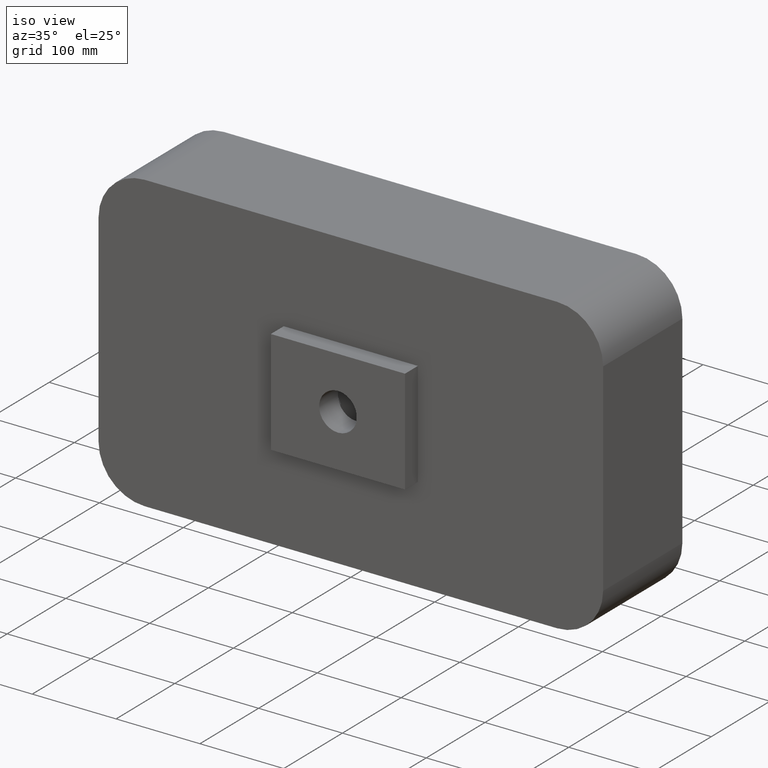
[diagram: clean part render]
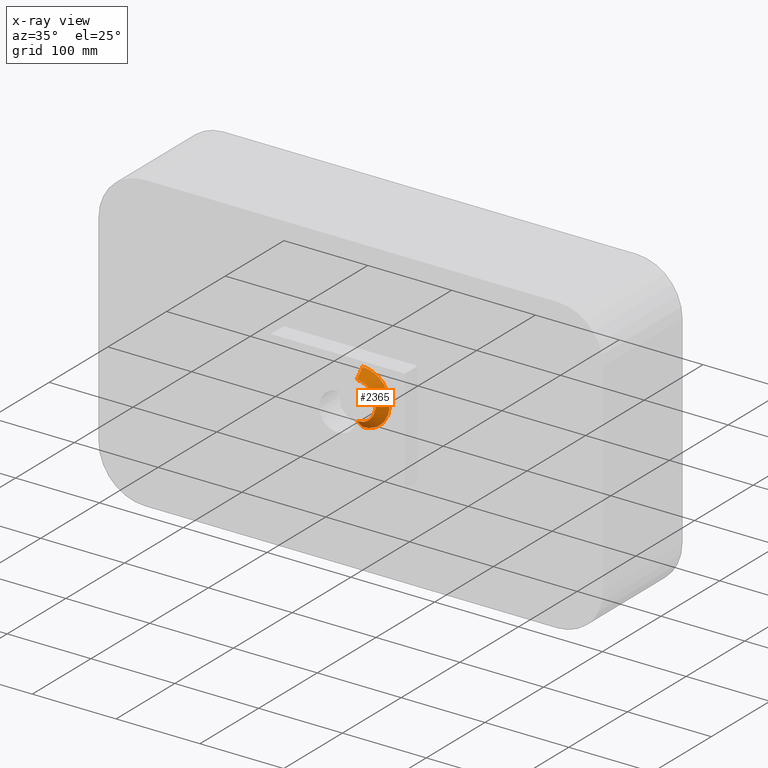
[diagram: x-ray — body ghosted, one internal face saturated and labeled with its STEP entity id]
A machine part, iso view, then the same camera in x-ray: the body is ghosted and one INTERNAL B-rep face — a face not visible from any outside direction — is saturated and labeled: STEP entity #2365.
In plain terms, the highlighted conical surface has half-angle 45 deg.
Its self-contained STEP definition (entity closure, byte-faithful):
#1 = CIRCLE ( 'NONE', #1334, 22.50000000000000400 ) ;
#33 = EDGE_CURVE ( 'NONE', #3898, #3593, #236, .T. ) ;
#80 = DIRECTION ( 'NONE',  ( 0.0000000000000000000, 0.0000000000000000000, 1.000000000000000000 ) ) ;
#115 = VERTEX_POINT ( 'NONE', #2238 ) ;
#118 = EDGE_CURVE ( 'NONE', #3722, #3073, #3879, .T. ) ;
#137 = CARTESIAN_POINT ( 'NONE',  ( 3.980102097228881300E-015, 19.99999999999998900, -32.49999999999986500 ) ) ;
#148 = CARTESIAN_POINT ( 'NONE',  ( 0.0000000000000000000, 19.99999999999999600, 0.0000000000000000000 ) ) ;
#236 = B_SPLINE_CURVE_WITH_KNOTS ( 'NONE', 3,
 ( #2494, #2490, #3352, #2545 ),
 .UNSPECIFIED., .F., .F.,
 ( 4, 4 ),
 ( 2.242781863231506700E-007, 0.005416605650511058800 ),
 .UNSPECIFIED. ) ;
#262 = ORIENTED_EDGE ( 'NONE', *, *, #1605, .F. ) ;
#275 = CARTESIAN_POINT ( 'NONE',  ( 29.65022553647534300, 19.78635688464801100, 12.90208177657897100 ) ) ;
#320 = CARTESIAN_POINT ( 'NONE',  ( 0.0000000000000000000, 19.99999999999998900, 0.0000000000000000000 ) ) ;
#342 = DIRECTION ( 'NONE',  ( 0.0000000000000000000, 0.0000000000000000000, 1.000000000000000000 ) ) ;
#400 = EDGE_CURVE ( 'NONE', #2932, #3073, #3658, .T. ) ;
#474 = DIRECTION ( 'NONE',  ( -0.0000000000000000000, 1.000000000000000000, -0.0000000000000000000 ) ) ;
#512 = CARTESIAN_POINT ( 'NONE',  ( 28.17156820453775600, 19.99999999999999600, 16.20533075555906100 ) ) ;
#535 = VERTEX_POINT ( 'NONE', #3062 ) ;
#549 = ORIENTED_EDGE ( 'NONE', *, *, #1485, .F. ) ;
#645 = CIRCLE ( 'NONE', #1710, 32.49999999999987200 ) ;
#688 = ORIENTED_EDGE ( 'NONE', *, *, #400, .T. ) ;
#951 = CONICAL_SURFACE ( 'NONE', #2060, 32.49999999999986500, 0.7853981633974463900 ) ;
#1004 = FACE_OUTER_BOUND ( 'NONE', #2607, .T. ) ;
#1091 = VERTEX_POINT ( 'NONE', #3864 ) ;
#1143 = CARTESIAN_POINT ( 'NONE',  ( 0.0000000000000000000, 19.99999999999999600, 0.0000000000000000000 ) ) ;
#1182 = DIRECTION ( 'NONE',  ( -0.0000000000000000000, -1.000000000000000000, -0.0000000000000000000 ) ) ;
#1223 = DIRECTION ( 'NONE',  ( 3.552713678800500900E-015, 0.0000000000000000000, 1.000000000000000000 ) ) ;
#1334 = AXIS2_PLACEMENT_3D ( 'NONE', #2575, #1957, #80 ) ;
#1345 = CARTESIAN_POINT ( 'NONE',  ( 2.755455298081545200E-015, 10.00000000000009200, 22.50000000000000400 ) ) ;
#1346 = AXIS2_PLACEMENT_3D ( 'NONE', #148, #2463, #1435 ) ;
#1405 = B_SPLINE_CURVE_WITH_KNOTS ( 'NONE', 3,
 ( #2581, #2620, #2647, #2657 ),
 .UNSPECIFIED., .F., .F.,
 ( 4, 4 ),
 ( 3.177388258759934400E-007, 0.0002728880739989348500 ),
 .UNSPECIFIED. ) ;
#1435 = DIRECTION ( 'NONE',  ( -1.776356839400250500E-015, 0.0000000000000000000, 1.000000000000000000 ) ) ;
#1443 = ORIENTED_EDGE ( 'NONE', *, *, #33, .F. ) ;
#1485 = EDGE_CURVE ( 'NONE', #115, #1091, #2314, .T. ) ;
#1519 = VERTEX_POINT ( 'NONE', #2013 ) ;
#1605 = EDGE_CURVE ( 'NONE', #1091, #1519, #2113, .T. ) ;
#1710 = AXIS2_PLACEMENT_3D ( 'NONE', #1143, #1182, #1223 ) ;
#1837 = DIRECTION ( 'NONE',  ( 8.659560562354915600E-017, 0.7071067811865489100, -0.7071067811865462400 ) ) ;
#1917 = CARTESIAN_POINT ( 'NONE',  ( 0.0000000000000000000, 19.99999999999999600, 32.49999999999987200 ) ) ;
#1957 = DIRECTION ( 'NONE',  ( -0.0000000000000000000, 1.000000000000000000, -0.0000000000000000000 ) ) ;
#2009 = ORIENTED_EDGE ( 'NONE', *, *, #2417, .F. ) ;
#2013 = CARTESIAN_POINT ( 'NONE',  ( 28.17156820453776700, 19.99999999999999600, -16.20533075555906100 ) ) ;
#2052 = VERTEX_POINT ( 'NONE', #3264 ) ;
#2060 = AXIS2_PLACEMENT_3D ( 'NONE', #320, #474, #342 ) ;
#2067 = CARTESIAN_POINT ( 'NONE',  ( 0.0000000000000000000, 19.99999999999998900, 32.49999999999986500 ) ) ;
#2113 = CIRCLE ( 'NONE', #1346, 32.49999999999987200 ) ;
#2238 = CARTESIAN_POINT ( 'NONE',  ( 0.0000000000000000000, 10.00000000000009200, -22.50000000000000400 ) ) ;
#2314 = LINE ( 'NONE', #137, #2333 ) ;
#2333 = VECTOR ( 'NONE', #1837, 1000.000000000000000 ) ;
#2365 = ADVANCED_FACE ( 'NONE', ( #1004 ), #951, .F. ) ;
#2407 = DIRECTION ( 'NONE',  ( -3.552713678800500900E-015, 0.0000000000000000000, 1.000000000000000000 ) ) ;
#2409 = CARTESIAN_POINT ( 'NONE',  ( 0.0000000000000000000, 19.99999999999999600, 0.0000000000000000000 ) ) ;
#2417 = EDGE_CURVE ( 'NONE', #2052, #535, #3414, .T. ) ;
#2428 = DIRECTION ( 'NONE',  ( -0.0000000000000000000, -1.000000000000000000, -0.0000000000000000000 ) ) ;
#2441 = CARTESIAN_POINT ( 'NONE',  ( 30.47169365987559800, 19.99999999999999600, 11.30158774237887300 ) ) ;
#2462 = CARTESIAN_POINT ( 'NONE',  ( 30.47169365987564800, 19.99999999999999600, -11.30158774237872000 ) ) ;
#2463 = DIRECTION ( 'NONE',  ( -0.0000000000000000000, -1.000000000000000000, -0.0000000000000000000 ) ) ;
#2490 = CARTESIAN_POINT ( 'NONE',  ( 28.82635668250554800, 19.72036284496105600, -14.50725323506958200 ) ) ;
#2494 = CARTESIAN_POINT ( 'NONE',  ( 27.99999999999999600, 19.80737455625945700, -16.11727181375411200 ) ) ;
#2536 = CARTESIAN_POINT ( 'NONE',  ( 27.99999999999999600, 19.80737455625945700, -16.11727181375411200 ) ) ;
#2545 = CARTESIAN_POINT ( 'NONE',  ( 30.47169365987564800, 19.99999999999999600, -11.30158774237872000 ) ) ;
#2575 = CARTESIAN_POINT ( 'NONE',  ( 0.0000000000000000000, 10.00000000000009200, 0.0000000000000000000 ) ) ;
#2581 = CARTESIAN_POINT ( 'NONE',  ( 28.00000000000000000, 19.80737455625946100, 16.11727181375411900 ) ) ;
#2607 = EDGE_LOOP ( 'NONE', ( #549, #3759, #688, #3687, #3585, #2009, #3382, #1443, #3515, #262 ) ) ;
#2620 = CARTESIAN_POINT ( 'NONE',  ( 28.05718959763475300, 19.87158281680535800, 16.14662489501725400 ) ) ;
#2622 = EDGE_CURVE ( 'NONE', #3593, #2052, #645, .T. ) ;
#2647 = CARTESIAN_POINT ( 'NONE',  ( 28.11437899798427500, 19.93579129936253100, 16.17597787502194300 ) ) ;
#2657 = CARTESIAN_POINT ( 'NONE',  ( 28.17156820453775600, 19.99999999999999600, 16.20533075555906100 ) ) ;
#2825 = DIRECTION ( 'NONE',  ( 0.0000000000000000000, 0.7071067811865489100, 0.7071067811865462400 ) ) ;
#2932 = VERTEX_POINT ( 'NONE', #1345 ) ;
#2997 = CARTESIAN_POINT ( 'NONE',  ( 28.17156820453776700, 19.99999999999999600, -16.20533075555906100 ) ) ;
#3001 = CARTESIAN_POINT ( 'NONE',  ( 28.11437899798427500, 19.93579129936253500, -16.17597787502193900 ) ) ;
#3009 = B_SPLINE_CURVE_WITH_KNOTS ( 'NONE', 3,
 ( #2997, #3001, #3029, #3100 ),
 .UNSPECIFIED., .F., .F.,
 ( 4, 4 ),
 ( 2.830045684348059700E-007, 0.0002728533397415065000 ),
 .UNSPECIFIED. ) ;
#3029 = CARTESIAN_POINT ( 'NONE',  ( 28.05718959763475300, 19.87158281680535400, -16.14662489501724700 ) ) ;
#3062 = CARTESIAN_POINT ( 'NONE',  ( 28.00000000000000000, 19.80737455625946100, 16.11727181375411900 ) ) ;
#3073 = VERTEX_POINT ( 'NONE', #1917 ) ;
#3100 = CARTESIAN_POINT ( 'NONE',  ( 27.99999999999999600, 19.80737455625945700, -16.11727181375411200 ) ) ;
#3197 = AXIS2_PLACEMENT_3D ( 'NONE', #2409, #2428, #2407 ) ;
#3215 = EDGE_CURVE ( 'NONE', #535, #3722, #1405, .T. ) ;
#3264 = CARTESIAN_POINT ( 'NONE',  ( 30.47169365987559800, 19.99999999999999600, 11.30158774237887300 ) ) ;
#3352 = CARTESIAN_POINT ( 'NONE',  ( 29.65022553647538600, 19.78635688464801500, -12.90208177657887100 ) ) ;
#3382 = ORIENTED_EDGE ( 'NONE', *, *, #2622, .F. ) ;
#3414 = B_SPLINE_CURVE_WITH_KNOTS ( 'NONE', 3,
 ( #2441, #275, #3891, #3839 ),
 .UNSPECIFIED., .F., .F.,
 ( 4, 4 ),
 ( 1.689803026992987800E-006, 0.005418071175351570100 ),
 .UNSPECIFIED. ) ;
#3515 = ORIENTED_EDGE ( 'NONE', *, *, #3760, .F. ) ;
#3585 = ORIENTED_EDGE ( 'NONE', *, *, #3215, .F. ) ;
#3593 = VERTEX_POINT ( 'NONE', #2462 ) ;
#3655 = VECTOR ( 'NONE', #2825, 1000.000000000000000 ) ;
#3658 = LINE ( 'NONE', #2067, #3655 ) ;
#3687 = ORIENTED_EDGE ( 'NONE', *, *, #118, .F. ) ;
#3722 = VERTEX_POINT ( 'NONE', #512 ) ;
#3759 = ORIENTED_EDGE ( 'NONE', *, *, #3887, .F. ) ;
#3760 = EDGE_CURVE ( 'NONE', #1519, #3898, #3009, .T. ) ;
#3839 = CARTESIAN_POINT ( 'NONE',  ( 28.00000000000000000, 19.80737455625946100, 16.11727181375411900 ) ) ;
#3864 = CARTESIAN_POINT ( 'NONE',  ( 3.980102097228882100E-015, 19.99999999999999600, -32.49999999999987200 ) ) ;
#3879 = CIRCLE ( 'NONE', #3197, 32.49999999999987200 ) ;
#3887 = EDGE_CURVE ( 'NONE', #2932, #115, #1, .T. ) ;
#3891 = CARTESIAN_POINT ( 'NONE',  ( 28.82635668250552600, 19.72036284496107000, 14.50725323506963300 ) ) ;
#3898 = VERTEX_POINT ( 'NONE', #2536 ) ;